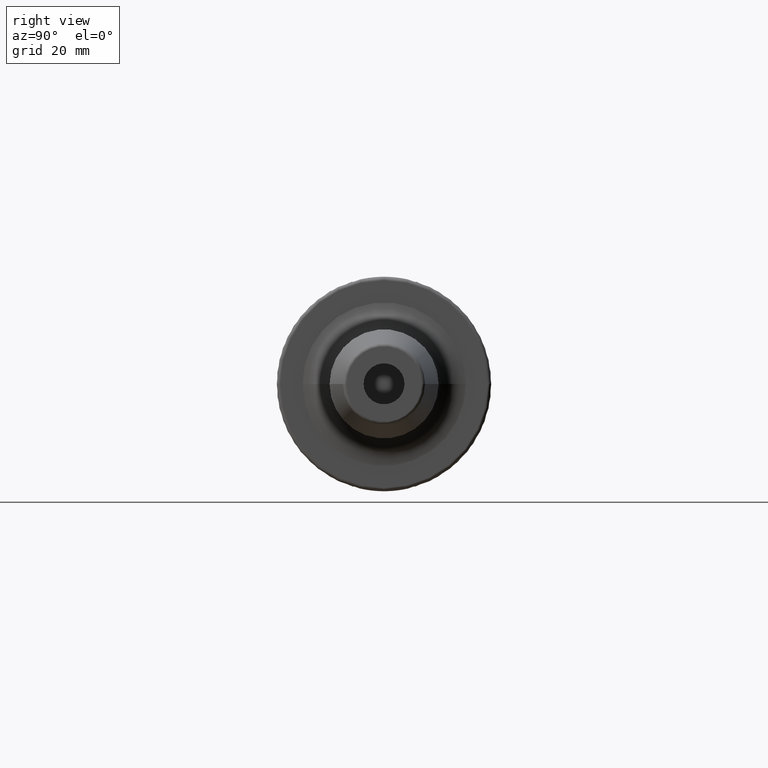
[diagram: clean part render]
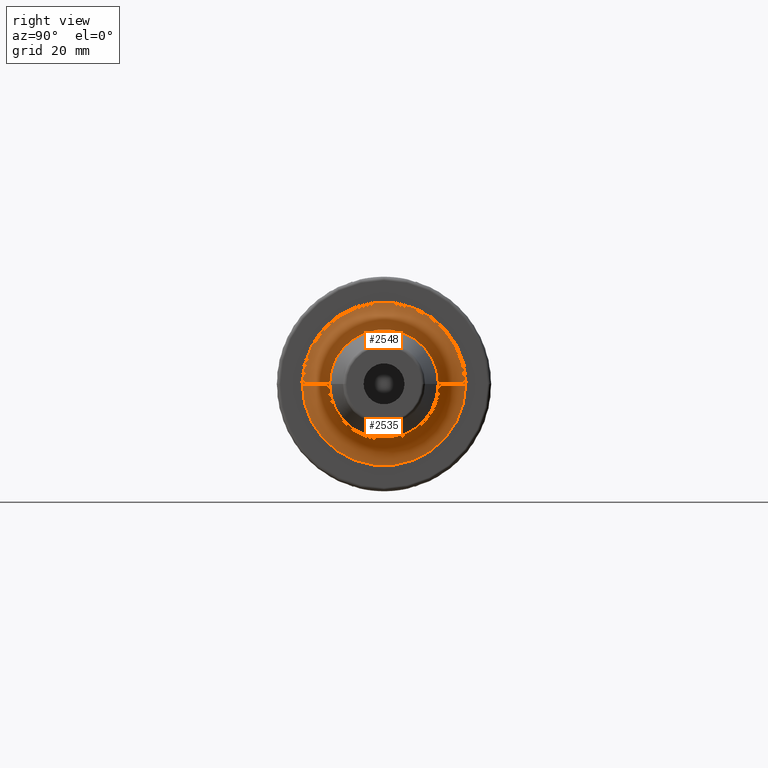
[diagram: same view with one multi-face feature highlighted, each face labeled with its STEP entity id]
A machine part, right view. The highlighted faces form ONE feature: a constant-radius fillet chain: 2 tangent blend faces with common blend radius 8 mm. The faces share edges in the B-rep.
Their STEP definitions:
[1] entity #2535 (Torus):
#836=CARTESIAN_POINT('',(2.7E1,0.E0,0.E0));
#837=DIRECTION('',(1.E0,0.E0,0.E0));
#838=DIRECTION('',(0.E0,-1.E0,0.E0));
#839=AXIS2_PLACEMENT_3D('',#836,#837,#838);
#846=CARTESIAN_POINT('',(3.5E1,-2.4E1,5.521111345885E-12));
#847=DIRECTION('',(0.E0,-2.300468843197E-13,-1.E0));
#848=DIRECTION('',(-1.E0,2.664535259100E-14,0.E0));
#849=AXIS2_PLACEMENT_3D('',#846,#847,#848);
#851=CARTESIAN_POINT('',(3.5E1,2.4E1,-5.513089984532E-12));
#852=DIRECTION('',(0.E0,2.297120826888E-13,1.E0));
#853=DIRECTION('',(-1.E0,-2.664535259100E-14,0.E0));
#854=AXIS2_PLACEMENT_3D('',#851,#852,#853);
#866=CARTESIAN_POINT('',(3.5E1,0.E0,0.E0));
#867=DIRECTION('',(1.E0,0.E0,0.E0));
#868=DIRECTION('',(0.E0,-1.E0,0.E0));
#869=AXIS2_PLACEMENT_3D('',#866,#867,#868);
#1401=CARTESIAN_POINT('',(2.7E1,-2.4E1,1.543797743690E-14));
#1402=CARTESIAN_POINT('',(2.7E1,2.4E1,-1.837712975485E-14));
#1403=VERTEX_POINT('',#1401);
#1404=VERTEX_POINT('',#1402);
#1405=CARTESIAN_POINT('',(3.5E1,-1.6E1,0.E0));
#1406=CARTESIAN_POINT('',(3.5E1,1.6E1,0.E0));
#1407=VERTEX_POINT('',#1405);
#1408=VERTEX_POINT('',#1406);
#2521=CARTESIAN_POINT('',(3.5E1,0.E0,0.E0));
#2522=DIRECTION('',(1.E0,0.E0,0.E0));
#2523=DIRECTION('',(0.E0,-9.999538195003E-1,9.610352060313E-3));
#2524=AXIS2_PLACEMENT_3D('',#2521,#2522,#2523);
#2525=TOROIDAL_SURFACE('',#2524,2.4E1,8.E0);
#2526=ORIENTED_EDGE('',*,*,#2514,.F.);
#2528=ORIENTED_EDGE('',*,*,#2527,.T.);
#2530=ORIENTED_EDGE('',*,*,#2529,.T.);
#2532=ORIENTED_EDGE('',*,*,#2531,.F.);
#2533=EDGE_LOOP('',(#2526,#2528,#2530,#2532));
#2534=FACE_OUTER_BOUND('',#2533,.F.);
#2535=ADVANCED_FACE('',(#2534),#2525,.F.);
#840=CIRCLE('',#839,2.4E1);
#850=CIRCLE('',#849,8.E0);
#855=CIRCLE('',#854,8.E0);
#870=CIRCLE('',#869,1.6E1);
#2514=EDGE_CURVE('',#1403,#1404,#840,.T.);
#2527=EDGE_CURVE('',#1403,#1407,#850,.T.);
#2529=EDGE_CURVE('',#1407,#1408,#870,.T.);
#2531=EDGE_CURVE('',#1404,#1408,#855,.T.);
[2] entity #2548 (Torus):
#841=CARTESIAN_POINT('',(2.7E1,0.E0,0.E0));
#842=DIRECTION('',(1.E0,0.E0,0.E0));
#843=DIRECTION('',(0.E0,1.E0,0.E0));
#844=AXIS2_PLACEMENT_3D('',#841,#842,#843);
#846=CARTESIAN_POINT('',(3.5E1,-2.4E1,5.521111345885E-12));
#847=DIRECTION('',(0.E0,-2.300468843197E-13,-1.E0));
#848=DIRECTION('',(-1.E0,2.664535259100E-14,0.E0));
#849=AXIS2_PLACEMENT_3D('',#846,#847,#848);
#851=CARTESIAN_POINT('',(3.5E1,2.4E1,-5.513089984532E-12));
#852=DIRECTION('',(0.E0,2.297120826888E-13,1.E0));
#853=DIRECTION('',(-1.E0,-2.664535259100E-14,0.E0));
#854=AXIS2_PLACEMENT_3D('',#851,#852,#853);
#856=CARTESIAN_POINT('',(3.5E1,0.E0,0.E0));
#857=DIRECTION('',(1.E0,0.E0,0.E0));
#858=DIRECTION('',(0.E0,1.E0,0.E0));
#859=AXIS2_PLACEMENT_3D('',#856,#857,#858);
#1401=CARTESIAN_POINT('',(2.7E1,-2.4E1,1.543797743690E-14));
#1402=CARTESIAN_POINT('',(2.7E1,2.4E1,-1.837712975485E-14));
#1403=VERTEX_POINT('',#1401);
#1404=VERTEX_POINT('',#1402);
#1405=CARTESIAN_POINT('',(3.5E1,-1.6E1,0.E0));
#1406=CARTESIAN_POINT('',(3.5E1,1.6E1,0.E0));
#1407=VERTEX_POINT('',#1405);
#1408=VERTEX_POINT('',#1406);
#2536=CARTESIAN_POINT('',(3.5E1,0.E0,0.E0));
#2537=DIRECTION('',(1.E0,0.E0,0.E0));
#2538=DIRECTION('',(0.E0,9.999538195003E-1,-9.610352060314E-3));
#2539=AXIS2_PLACEMENT_3D('',#2536,#2537,#2538);
#2540=TOROIDAL_SURFACE('',#2539,2.4E1,8.E0);
#2541=ORIENTED_EDGE('',*,*,#2516,.F.);
#2542=ORIENTED_EDGE('',*,*,#2531,.T.);
#2544=ORIENTED_EDGE('',*,*,#2543,.T.);
#2545=ORIENTED_EDGE('',*,*,#2527,.F.);
#2546=EDGE_LOOP('',(#2541,#2542,#2544,#2545));
#2547=FACE_OUTER_BOUND('',#2546,.F.);
#2548=ADVANCED_FACE('',(#2547),#2540,.F.);
#845=CIRCLE('',#844,2.4E1);
#850=CIRCLE('',#849,8.E0);
#855=CIRCLE('',#854,8.E0);
#860=CIRCLE('',#859,1.6E1);
#2516=EDGE_CURVE('',#1404,#1403,#845,.T.);
#2527=EDGE_CURVE('',#1403,#1407,#850,.T.);
#2531=EDGE_CURVE('',#1404,#1408,#855,.T.);
#2543=EDGE_CURVE('',#1408,#1407,#860,.T.);